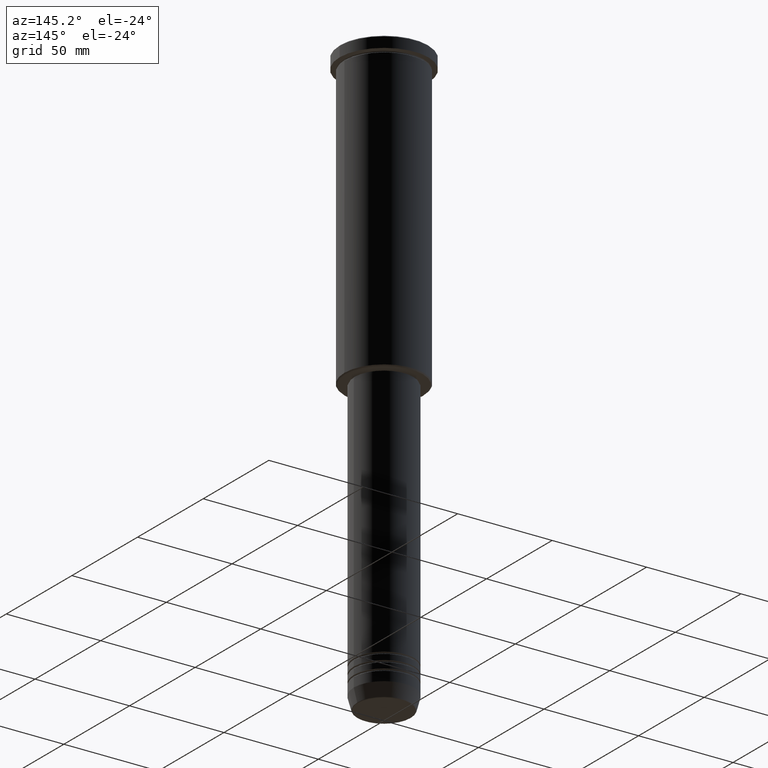
[diagram: clean part render]
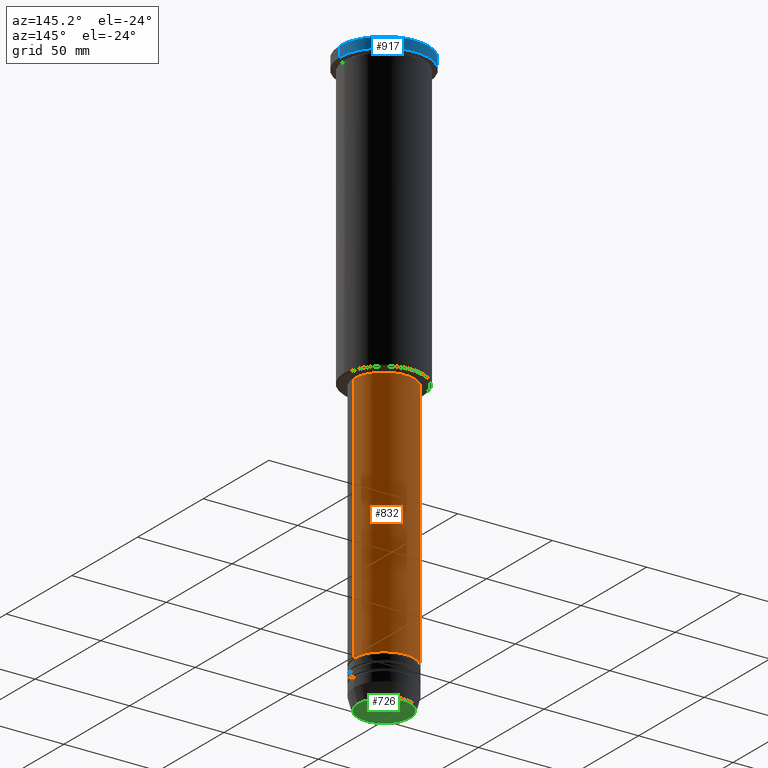
[diagram: same view with three faces highlighted in distinct colors, each labeled with its STEP entity id]
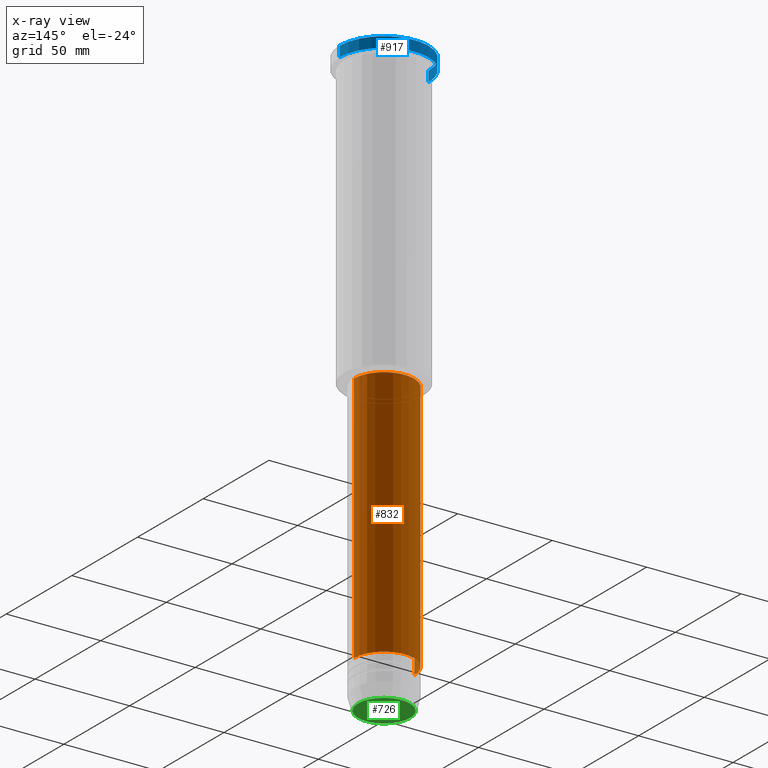
[diagram: x-ray of the same camera — body ghosted, the three highlighted faces saturated]
A machine part, auxiliary view with three faces highlighted in distinct colors.
The next image is the same camera in x-ray (body ghosted, the three faces saturated) — at least one of them is partly hidden behind the body in this view.
Their STEP definitions:

[orange] entity #832 — the highlighted cylindrical surface (partial cylindrical patch) has radius 16 mm, axis along (-0, -0, 1).
#18 = CARTESIAN_POINT ( 'NONE',  ( 16.00000000000000355, 0.000000000000000000, -156.9999999999999147 ) ) ;
#40 = ORIENTED_EDGE ( 'NONE', *, *, #1179, .F. ) ;
#99 = CARTESIAN_POINT ( 'NONE',  ( 0.000000000000000000, 0.000000000000000000, -289.9999999999999432 ) ) ;
#105 = DIRECTION ( 'NONE',  ( 1.000000000000000000, 0.000000000000000000, 0.000000000000000000 ) ) ;
#120 = LINE ( 'NONE', #667, #336 ) ;
#129 = AXIS2_PLACEMENT_3D ( 'NONE', #1121, #845, #400 ) ;
#152 = VECTOR ( 'NONE', #1148, 1000.000000000000000 ) ;
#182 = AXIS2_PLACEMENT_3D ( 'NONE', #490, #1051, #402 ) ;
#199 = VERTEX_POINT ( 'NONE', #363 ) ;
#208 = ORIENTED_EDGE ( 'NONE', *, *, #1143, .T. ) ;
#336 = VECTOR ( 'NONE', #566, 1000.000000000000000 ) ;
#363 = CARTESIAN_POINT ( 'NONE',  ( -16.00000000000000355, 1.959434878635765526E-15, -156.9999999999999147 ) ) ;
#398 = CARTESIAN_POINT ( 'NONE',  ( 16.00000000000000000, 0.000000000000000000, -289.9999999999999432 ) ) ;
#400 = DIRECTION ( 'NONE',  ( 1.000000000000000000, 0.000000000000000000, 0.000000000000000000 ) ) ;
#402 = DIRECTION ( 'NONE',  ( 1.000000000000000000, 0.000000000000000000, 0.000000000000000000 ) ) ;
#444 = ORIENTED_EDGE ( 'NONE', *, *, #1104, .T. ) ;
#490 = CARTESIAN_POINT ( 'NONE',  ( 0.000000000000000000, 0.000000000000000000, 0.000000000000000000 ) ) ;
#510 = CARTESIAN_POINT ( 'NONE',  ( -16.00000000000000000, 1.959434878635765131E-15, -289.9999999999999432 ) ) ;
#519 = EDGE_CURVE ( 'NONE', #861, #1108, #692, .T. ) ;
#552 = VERTEX_POINT ( 'NONE', #510 ) ;
#566 = DIRECTION ( 'NONE',  ( -0.000000000000000000, -0.000000000000000000, 1.000000000000000000 ) ) ;
#637 = EDGE_LOOP ( 'NONE', ( #444, #208, #40, #1090 ) ) ;
#667 = CARTESIAN_POINT ( 'NONE',  ( -16.00000000000000000, 1.959434878635765131E-15, 0.000000000000000000 ) ) ;
#692 = LINE ( 'NONE', #1142, #152 ) ;
#735 = AXIS2_PLACEMENT_3D ( 'NONE', #99, #835, #105 ) ;
#832 = ADVANCED_FACE ( 'NONE', ( #1036 ), #939, .T. ) ;
#835 = DIRECTION ( 'NONE',  ( -0.000000000000000000, -0.000000000000000000, 1.000000000000000000 ) ) ;
#845 = DIRECTION ( 'NONE',  ( -0.000000000000000000, -0.000000000000000000, 1.000000000000000000 ) ) ;
#849 = CIRCLE ( 'NONE', #129, 16.00000000000000355 ) ;
#861 = VERTEX_POINT ( 'NONE', #398 ) ;
#939 = CYLINDRICAL_SURFACE ( 'NONE', #182, 16.00000000000000000 ) ;
#1036 = FACE_OUTER_BOUND ( 'NONE', #637, .T. ) ;
#1051 = DIRECTION ( 'NONE',  ( -0.000000000000000000, -0.000000000000000000, 1.000000000000000000 ) ) ;
#1090 = ORIENTED_EDGE ( 'NONE', *, *, #519, .F. ) ;
#1104 = EDGE_CURVE ( 'NONE', #861, #552, #1162, .T. ) ;
#1108 = VERTEX_POINT ( 'NONE', #18 ) ;
#1121 = CARTESIAN_POINT ( 'NONE',  ( 0.000000000000000000, 0.000000000000000000, -156.9999999999999147 ) ) ;
#1142 = CARTESIAN_POINT ( 'NONE',  ( 16.00000000000000000, 0.000000000000000000, 0.000000000000000000 ) ) ;
#1143 = EDGE_CURVE ( 'NONE', #552, #199, #120, .T. ) ;
#1148 = DIRECTION ( 'NONE',  ( -0.000000000000000000, -0.000000000000000000, 1.000000000000000000 ) ) ;
#1162 = CIRCLE ( 'NONE', #735, 16.00000000000000000 ) ;
#1179 = EDGE_CURVE ( 'NONE', #1108, #199, #849, .T. ) ;

[blue] entity #917 — the highlighted cylindrical surface (partial cylindrical patch) has radius 23.5 mm, axis along (-0, -0, 1).
#61 = CARTESIAN_POINT ( 'NONE',  ( -23.50000000000000000, 2.877919977996280320E-15, 0.000000000000000000 ) ) ;
#144 = LINE ( 'NONE', #61, #656 ) ;
#145 = DIRECTION ( 'NONE',  ( 0.000000000000000000, 0.000000000000000000, -1.000000000000000000 ) ) ;
#171 = EDGE_CURVE ( 'NONE', #848, #670, #545, .T. ) ;
#253 = EDGE_CURVE ( 'NONE', #848, #532, #541, .T. ) ;
#310 = CARTESIAN_POINT ( 'NONE',  ( 23.50000000000000000, 0.000000000000000000, -5.999999999999993783 ) ) ;
#417 = CARTESIAN_POINT ( 'NONE',  ( -23.50000000000000000, 2.877919977996280320E-15, -0.4999999999999726885 ) ) ;
#439 = CARTESIAN_POINT ( 'NONE',  ( 0.000000000000000000, 0.000000000000000000, 0.000000000000000000 ) ) ;
#443 = DIRECTION ( 'NONE',  ( 1.000000000000000000, 0.000000000000000000, 0.000000000000000000 ) ) ;
#445 = EDGE_CURVE ( 'NONE', #532, #1012, #144, .T. ) ;
#499 = AXIS2_PLACEMENT_3D ( 'NONE', #611, #1175, #443 ) ;
#532 = VERTEX_POINT ( 'NONE', #1047 ) ;
#537 = AXIS2_PLACEMENT_3D ( 'NONE', #1144, #145, #1030 ) ;
#541 = CIRCLE ( 'NONE', #499, 23.50000000000000000 ) ;
#545 = LINE ( 'NONE', #617, #792 ) ;
#611 = CARTESIAN_POINT ( 'NONE',  ( 0.000000000000000000, 0.000000000000000000, -5.999999999999993783 ) ) ;
#617 = CARTESIAN_POINT ( 'NONE',  ( 23.50000000000000000, 0.000000000000000000, 0.000000000000000000 ) ) ;
#620 = ORIENTED_EDGE ( 'NONE', *, *, #445, .T. ) ;
#628 = ORIENTED_EDGE ( 'NONE', *, *, #171, .F. ) ;
#656 = VECTOR ( 'NONE', #858, 1000.000000000000000 ) ;
#670 = VERTEX_POINT ( 'NONE', #1164 ) ;
#718 = CIRCLE ( 'NONE', #537, 23.50000000000000000 ) ;
#792 = VECTOR ( 'NONE', #888, 1000.000000000000000 ) ;
#803 = EDGE_CURVE ( 'NONE', #1012, #670, #718, .T. ) ;
#848 = VERTEX_POINT ( 'NONE', #310 ) ;
#858 = DIRECTION ( 'NONE',  ( -0.000000000000000000, -0.000000000000000000, 1.000000000000000000 ) ) ;
#888 = DIRECTION ( 'NONE',  ( -0.000000000000000000, -0.000000000000000000, 1.000000000000000000 ) ) ;
#917 = ADVANCED_FACE ( 'NONE', ( #1150 ), #979, .T. ) ;
#979 = CYLINDRICAL_SURFACE ( 'NONE', #1178, 23.50000000000000000 ) ;
#986 = DIRECTION ( 'NONE',  ( 1.000000000000000000, 0.000000000000000000, 0.000000000000000000 ) ) ;
#1012 = VERTEX_POINT ( 'NONE', #417 ) ;
#1030 = DIRECTION ( 'NONE',  ( 1.000000000000000000, 0.000000000000000000, 0.000000000000000000 ) ) ;
#1047 = CARTESIAN_POINT ( 'NONE',  ( -23.50000000000000000, 2.877919977996280320E-15, -5.999999999999993783 ) ) ;
#1054 = ORIENTED_EDGE ( 'NONE', *, *, #803, .T. ) ;
#1076 = EDGE_LOOP ( 'NONE', ( #1124, #620, #1054, #628 ) ) ;
#1124 = ORIENTED_EDGE ( 'NONE', *, *, #253, .T. ) ;
#1144 = CARTESIAN_POINT ( 'NONE',  ( 0.000000000000000000, 0.000000000000000000, -0.4999999999999726885 ) ) ;
#1150 = FACE_OUTER_BOUND ( 'NONE', #1076, .T. ) ;
#1155 = DIRECTION ( 'NONE',  ( -0.000000000000000000, -0.000000000000000000, 1.000000000000000000 ) ) ;
#1164 = CARTESIAN_POINT ( 'NONE',  ( 23.50000000000000000, 0.000000000000000000, -0.4999999999999726885 ) ) ;
#1175 = DIRECTION ( 'NONE',  ( -0.000000000000000000, -0.000000000000000000, 1.000000000000000000 ) ) ;
#1178 = AXIS2_PLACEMENT_3D ( 'NONE', #439, #1155, #986 ) ;

[green] entity #726 — the highlighted planar face has unit normal (0, -0, 1).
#30 = AXIS2_PLACEMENT_3D ( 'NONE', #962, #626, #949 ) ;
#50 = VERTEX_POINT ( 'NONE', #966 ) ;
#52 = PLANE ( 'NONE',  #30 ) ;
#124 = EDGE_CURVE ( 'NONE', #853, #50, #1082, .T. ) ;
#141 = DIRECTION ( 'NONE',  ( 0.000000000000000000, 0.000000000000000000, -1.000000000000000000 ) ) ;
#162 = DIRECTION ( 'NONE',  ( 1.000000000000000000, 0.000000000000000000, 0.000000000000000000 ) ) ;
#207 = CIRCLE ( 'NONE', #302, 13.74069215899265828 ) ;
#295 = ORIENTED_EDGE ( 'NONE', *, *, #720, .T. ) ;
#302 = AXIS2_PLACEMENT_3D ( 'NONE', #641, #549, #347 ) ;
#322 = CARTESIAN_POINT ( 'NONE',  ( 13.74069215899265828, 0.000000000000000000, -311.0000000000000000 ) ) ;
#347 = DIRECTION ( 'NONE',  ( 1.000000000000000000, 0.000000000000000000, 0.000000000000000000 ) ) ;
#549 = DIRECTION ( 'NONE',  ( 0.000000000000000000, 0.000000000000000000, -1.000000000000000000 ) ) ;
#584 = ORIENTED_EDGE ( 'NONE', *, *, #124, .T. ) ;
#626 = DIRECTION ( 'NONE',  ( 0.000000000000000000, -0.000000000000000000, 1.000000000000000000 ) ) ;
#641 = CARTESIAN_POINT ( 'NONE',  ( 0.000000000000000000, 0.000000000000000000, -311.0000000000000000 ) ) ;
#720 = EDGE_CURVE ( 'NONE', #50, #853, #207, .T. ) ;
#726 = ADVANCED_FACE ( 'NONE', ( #806 ), #52, .F. ) ;
#806 = FACE_OUTER_BOUND ( 'NONE', #989, .T. ) ;
#853 = VERTEX_POINT ( 'NONE', #322 ) ;
#949 = DIRECTION ( 'NONE',  ( 1.000000000000000000, 0.000000000000000000, 0.000000000000000000 ) ) ;
#962 = CARTESIAN_POINT ( 'NONE',  ( 0.000000000000000000, 0.000000000000000000, -311.0000000000000000 ) ) ;
#966 = CARTESIAN_POINT ( 'NONE',  ( -13.74069215899265828, 1.712322416342415986E-15, -311.0000000000000000 ) ) ;
#989 = EDGE_LOOP ( 'NONE', ( #584, #295 ) ) ;
#1024 = AXIS2_PLACEMENT_3D ( 'NONE', #1151, #141, #162 ) ;
#1082 = CIRCLE ( 'NONE', #1024, 13.74069215899265828 ) ;
#1151 = CARTESIAN_POINT ( 'NONE',  ( 0.000000000000000000, 0.000000000000000000, -311.0000000000000000 ) ) ;